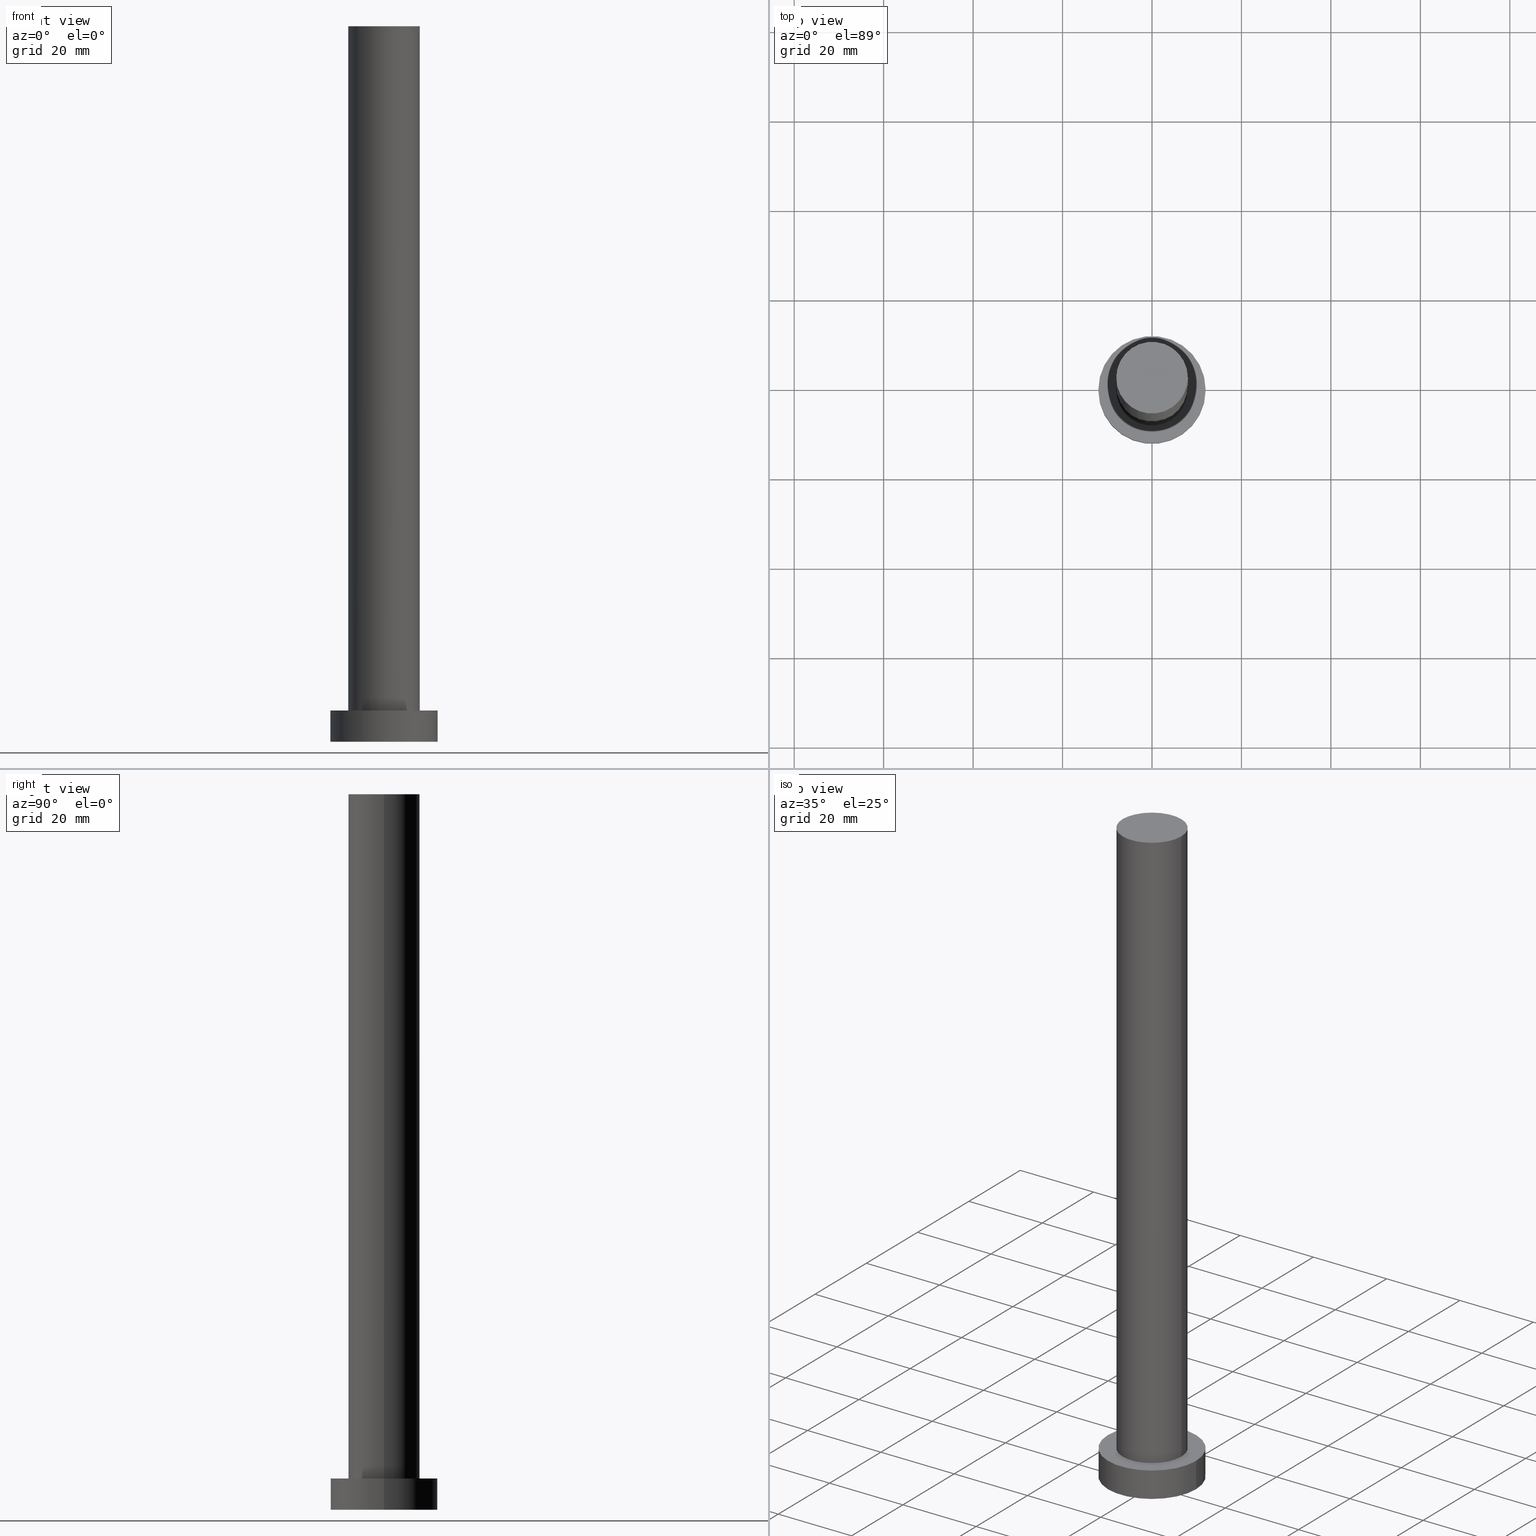
[diagram: canonical four-view strip — front | top / right | iso, engineering-drawing reading convention]
A machine part, canonical four-view strip (front | top / right | iso — engineering-drawing reading convention). The complete STEP part file that produces these views, byte-faithful:
ISO-10303-21;
HEADER;
FILE_DESCRIPTION (( 'STEP AP203' ),
    '1' );
FILE_NAME ('337f.STEP',
    '2023-02-13T09:44:28',
    ( '' ),
    ( '' ),
    'SwSTEP 2.0',
    'SolidWorks 2019',
    '' );
FILE_SCHEMA (( 'CONFIG_CONTROL_DESIGN' ));
ENDSEC;

DATA;
#1 = DIRECTION ( 'NONE',  ( 0.000000000000000000, 0.000000000000000000, 1.000000000000000000 ) ) ;
#2 = CC_DESIGN_PERSON_AND_ORGANIZATION_ASSIGNMENT ( #181, #60, ( #112 ) ) ;
#3 = LOCAL_TIME ( 10, 44, 28.00000000000000000, #5 ) ;
#4 = APPROVAL_STATUS ( 'not_yet_approved' ) ;
#5 = COORDINATED_UNIVERSAL_TIME_OFFSET ( 1, 0, .AHEAD. ) ;
#6 = DATE_AND_TIME ( #163, #107 ) ;
#7 = ORIENTED_EDGE ( 'NONE', *, *, #114, .T. ) ;
#8 = PRODUCT_RELATED_PRODUCT_CATEGORY ( 'detail', '', ( #170 ) ) ;
#9 = ORIENTED_EDGE ( 'NONE', *, *, #37, .T. ) ;
#10 = AXIS2_PLACEMENT_3D ( 'NONE', #32, #116, #178 ) ;
#11 = ORIENTED_EDGE ( 'NONE', *, *, #122, .T. ) ;
#12 = EDGE_CURVE ( 'NONE', #229, #132, #59, .T. ) ;
#13 = EDGE_CURVE ( 'NONE', #111, #31, #62, .T. ) ;
#14 = ORIENTED_EDGE ( 'NONE', *, *, #222, .T. ) ;
#15 = AXIS2_PLACEMENT_3D ( 'NONE', #168, #246, #68 ) ;
#16 = CC_DESIGN_APPROVAL ( #159, ( #200 ) ) ;
#17 = LINE ( 'NONE', #140, #194 ) ;
#18 = DIRECTION ( 'NONE',  ( 1.000000000000000000, 0.000000000000000000, 0.000000000000000000 ) ) ;
#19 = DIRECTION ( 'NONE',  ( -1.000000000000000000, 0.000000000000000000, 0.000000000000000000 ) ) ;
#20 = CARTESIAN_POINT ( 'NONE',  ( 0.000000000000000000, 0.000000000000000000, 7.000000000000000000 ) ) ;
#21 = ADVANCED_FACE ( 'NONE', ( #113, #150 ), #185, .T. ) ;
#22 = FACE_OUTER_BOUND ( 'NONE', #208, .T. ) ;
#23 = DIRECTION ( 'NONE',  ( -1.000000000000000000, 0.000000000000000000, 0.000000000000000000 ) ) ;
#24 = LOCAL_TIME ( 10, 44, 28.00000000000000000, #133 ) ;
#25 = APPLICATION_CONTEXT ( 'configuration controlled 3d designs of mechanical parts and assemblies' ) ;
#26 = CARTESIAN_POINT ( 'NONE',  ( 0.000000000000000000, 0.000000000000000000, 160.0000000000000000 ) ) ;
#27 = EDGE_CURVE ( 'NONE', #183, #31, #48, .T. ) ;
#28 = ORIENTED_EDGE ( 'NONE', *, *, #57, .F. ) ;
#29 = ORIENTED_EDGE ( 'NONE', *, *, #122, .F. ) ;
#30 = DIRECTION ( 'NONE',  ( 1.000000000000000000, 0.000000000000000000, 0.000000000000000000 ) ) ;
#31 = VERTEX_POINT ( 'NONE', #39 ) ;
#32 = CARTESIAN_POINT ( 'NONE',  ( 0.000000000000000000, 0.000000000000000000, 7.000000000000000000 ) ) ;
#33 = VECTOR ( 'NONE', #216, 1000.000000000000000 ) ;
#34 = CARTESIAN_POINT ( 'NONE',  ( 0.000000000000000000, 0.000000000000000000, 160.0000000000000000 ) ) ;
#35 = DIRECTION ( 'NONE',  ( 0.000000000000000000, 0.000000000000000000, 1.000000000000000000 ) ) ;
#36 = DIRECTION ( 'NONE',  ( 0.000000000000000000, 0.000000000000000000, 1.000000000000000000 ) ) ;
#37 = EDGE_CURVE ( 'NONE', #132, #229, #96, .T. ) ;
#38 = APPLICATION_CONTEXT ( 'configuration controlled 3d designs of mechanical parts and assemblies' ) ;
#39 = CARTESIAN_POINT ( 'NONE',  ( -8.000000000000000000, 0.000000000000000000, 7.000000000000000000 ) ) ;
#40 = APPROVAL_ROLE ( '' ) ;
#41 = AXIS2_PLACEMENT_3D ( 'NONE', #139, #215, #97 ) ;
#42 =( LENGTH_UNIT ( ) NAMED_UNIT ( * ) SI_UNIT ( .MILLI., .METRE. ) );
#43 = PERSON_AND_ORGANIZATION ( #204, #239 ) ;
#44 = CC_DESIGN_PERSON_AND_ORGANIZATION_ASSIGNMENT ( #145, #123, ( #112 ) ) ;
#45 = AXIS2_PLACEMENT_3D ( 'NONE', #137, #252, #52 ) ;
#46 = CALENDAR_DATE ( 2023, 13, 2 ) ;
#47 = ORIENTED_EDGE ( 'NONE', *, *, #222, .F. ) ;
#48 = LINE ( 'NONE', #78, #106 ) ;
#49 = ORIENTED_EDGE ( 'NONE', *, *, #12, .F. ) ;
#50 = APPROVAL_PERSON_ORGANIZATION ( #63, #53, #83 ) ;
#51 = VERTEX_POINT ( 'NONE', #77 ) ;
#52 = DIRECTION ( 'NONE',  ( 1.000000000000000000, 0.000000000000000000, 0.000000000000000000 ) ) ;
#53 = APPROVAL ( #221, 'NEUR�EN�' ) ;
#54 = FACE_OUTER_BOUND ( 'NONE', #226, .T. ) ;
#55 = DIRECTION ( 'NONE',  ( 1.000000000000000000, 0.000000000000000000, 0.000000000000000000 ) ) ;
#56 = CARTESIAN_POINT ( 'NONE',  ( 0.000000000000000000, 0.000000000000000000, 0.000000000000000000 ) ) ;
#57 = EDGE_CURVE ( 'NONE', #183, #51, #202, .T. ) ;
#58 = DIRECTION ( 'NONE',  ( 0.000000000000000000, 0.000000000000000000, 1.000000000000000000 ) ) ;
#59 = CIRCLE ( 'NONE', #244, 12.00000000000000178 ) ;
#60 = PERSON_AND_ORGANIZATION_ROLE ( 'design_supplier' ) ;
#61 = CALENDAR_DATE ( 2023, 13, 2 ) ;
#62 = CIRCLE ( 'NONE', #15, 8.000000000000000000 ) ;
#63 = PERSON_AND_ORGANIZATION ( #204, #239 ) ;
#64 = APPROVAL_PERSON_ORGANIZATION ( #43, #159, #80 ) ;
#65 = ADVANCED_BREP_SHAPE_REPRESENTATION ( '337f', ( #161, #172 ), #129 ) ;
#66 = DIRECTION ( 'NONE',  ( 0.000000000000000000, 0.000000000000000000, 1.000000000000000000 ) ) ;
#67 = AXIS2_PLACEMENT_3D ( 'NONE', #74, #36, #155 ) ;
#68 = DIRECTION ( 'NONE',  ( 1.000000000000000000, 0.000000000000000000, 0.000000000000000000 ) ) ;
#69 = EDGE_LOOP ( 'NONE', ( #203, #70, #248, #87 ) ) ;
#70 = ORIENTED_EDGE ( 'NONE', *, *, #187, .T. ) ;
#71 = ADVANCED_FACE ( 'NONE', ( #237 ), #95, .T. ) ;
#72 = DIRECTION ( 'NONE',  ( -0.000000000000000000, -0.000000000000000000, -1.000000000000000000 ) ) ;
#73 = UNCERTAINTY_MEASURE_WITH_UNIT (LENGTH_MEASURE( 1.000000000000000082E-05 ), #42, 'distance_accuracy_value', 'NONE');
#74 = CARTESIAN_POINT ( 'NONE',  ( 0.000000000000000000, 0.000000000000000000, 0.000000000000000000 ) ) ;
#75 = SECURITY_CLASSIFICATION ( '', '', #243 ) ;
#76 = DIRECTION ( 'NONE',  ( -0.000000000000000000, -0.000000000000000000, -1.000000000000000000 ) ) ;
#77 = CARTESIAN_POINT ( 'NONE',  ( 8.000000000000000000, 9.797174393178825657E-16, 160.0000000000000000 ) ) ;
#78 = CARTESIAN_POINT ( 'NONE',  ( -8.000000000000000000, 0.000000000000000000, 160.0000000000000000 ) ) ;
#79 = CIRCLE ( 'NONE', #41, 12.00000000000000178 ) ;
#80 = APPROVAL_ROLE ( '' ) ;
#81 = COORDINATED_UNIVERSAL_TIME_OFFSET ( 1, 0, .AHEAD. ) ;
#82 =( NAMED_UNIT ( * ) PLANE_ANGLE_UNIT ( ) SI_UNIT ( $, .RADIAN. ) );
#83 = APPROVAL_ROLE ( '' ) ;
#84 = EDGE_CURVE ( 'NONE', #31, #111, #162, .T. ) ;
#85 = LOCAL_TIME ( 10, 44, 28.00000000000000000, #241 ) ;
#86 = DIRECTION ( 'NONE',  ( 0.000000000000000000, 0.000000000000000000, 1.000000000000000000 ) ) ;
#87 = ORIENTED_EDGE ( 'NONE', *, *, #27, .F. ) ;
#88 = AXIS2_PLACEMENT_3D ( 'NONE', #20, #119, #19 ) ;
#89 = ORIENTED_EDGE ( 'NONE', *, *, #13, .F. ) ;
#90 = APPROVAL ( #4, 'NEUR�EN�' ) ;
#91 = ORIENTED_EDGE ( 'NONE', *, *, #187, .F. ) ;
#92 = AXIS2_PLACEMENT_3D ( 'NONE', #34, #1, #160 ) ;
#93 = CARTESIAN_POINT ( 'NONE',  ( 12.00000000000000178, 1.469576158976824144E-15, 7.000000000000000000 ) ) ;
#94 = PLANE ( 'NONE',  #67 ) ;
#95 = CYLINDRICAL_SURFACE ( 'NONE', #88, 12.00000000000000178 ) ;
#96 = CIRCLE ( 'NONE', #141, 12.00000000000000178 ) ;
#97 = DIRECTION ( 'NONE',  ( 1.000000000000000000, 0.000000000000000000, 0.000000000000000000 ) ) ;
#98 = DIRECTION ( 'NONE',  ( 0.000000000000000000, 0.000000000000000000, 1.000000000000000000 ) ) ;
#99 = ADVANCED_FACE ( 'NONE', ( #22 ), #193, .T. ) ;
#100 = PERSON_AND_ORGANIZATION_ROLE ( 'classification_officer' ) ;
#101 = CC_DESIGN_DATE_AND_TIME_ASSIGNMENT ( #144, #219, ( #75 ) ) ;
#102 = CIRCLE ( 'NONE', #233, 8.000000000000000000 ) ;
#103 = LOCAL_TIME ( 10, 44, 28.00000000000000000, #164 ) ;
#104 = APPLICATION_PROTOCOL_DEFINITION ( 'international standard', 'config_control_design', 1994, #38 ) ;
#105 = APPLICATION_PROTOCOL_DEFINITION ( 'international standard', 'config_control_design', 1994, #25 ) ;
#106 = VECTOR ( 'NONE', #120, 1000.000000000000000 ) ;
#107 = LOCAL_TIME ( 10, 44, 28.00000000000000000, #81 ) ;
#108 =( NAMED_UNIT ( * ) SI_UNIT ( $, .STERADIAN. ) SOLID_ANGLE_UNIT ( ) );
#109 = ORIENTED_EDGE ( 'NONE', *, *, #114, .F. ) ;
#110 = EDGE_LOOP ( 'NONE', ( #206, #89 ) ) ;
#111 = VERTEX_POINT ( 'NONE', #174 ) ;
#112 = PRODUCT_DEFINITION_FORMATION_WITH_SPECIFIED_SOURCE ( 'LIBOVOLN�', '', #170, .NOT_KNOWN. ) ;
#113 = FACE_BOUND ( 'NONE', #110, .T. ) ;
#114 = EDGE_CURVE ( 'NONE', #225, #153, #79, .T. ) ;
#115 = EDGE_LOOP ( 'NONE', ( #11, #7 ) ) ;
#116 = DIRECTION ( 'NONE',  ( -0.000000000000000000, -0.000000000000000000, -1.000000000000000000 ) ) ;
#117 = AXIS2_PLACEMENT_3D ( 'NONE', #254, #98, #55 ) ;
#118 = CARTESIAN_POINT ( 'NONE',  ( 0.000000000000000000, 0.000000000000000000, 160.0000000000000000 ) ) ;
#119 = DIRECTION ( 'NONE',  ( -0.000000000000000000, -0.000000000000000000, -1.000000000000000000 ) ) ;
#120 = DIRECTION ( 'NONE',  ( -0.000000000000000000, -0.000000000000000000, -1.000000000000000000 ) ) ;
#121 = DIRECTION ( 'NONE',  ( 0.000000000000000000, 0.000000000000000000, 1.000000000000000000 ) ) ;
#122 = EDGE_CURVE ( 'NONE', #153, #225, #224, .T. ) ;
#123 = PERSON_AND_ORGANIZATION_ROLE ( 'creator' ) ;
#124 = CARTESIAN_POINT ( 'NONE',  ( 0.000000000000000000, 0.000000000000000000, 0.000000000000000000 ) ) ;
#125 = APPROVAL_PERSON_ORGANIZATION ( #240, #90, #40 ) ;
#126 = DATE_AND_TIME ( #143, #103 ) ;
#127 = PERSON_AND_ORGANIZATION_ROLE ( 'design_owner' ) ;
#128 = APPROVAL_DATE_TIME ( #199, #90 ) ;
#129 =( GEOMETRIC_REPRESENTATION_CONTEXT ( 3 ) GLOBAL_UNCERTAINTY_ASSIGNED_CONTEXT ( ( #73 ) ) GLOBAL_UNIT_ASSIGNED_CONTEXT ( ( #42, #82, #108 ) ) REPRESENTATION_CONTEXT ( 'NONE', 'WORKASPACE' ) );
#130 = DATE_AND_TIME ( #46, #24 ) ;
#131 = ORIENTED_EDGE ( 'NONE', *, *, #37, .F. ) ;
#132 = VERTEX_POINT ( 'NONE', #253 ) ;
#133 = COORDINATED_UNIVERSAL_TIME_OFFSET ( 1, 0, .AHEAD. ) ;
#134 = ORIENTED_EDGE ( 'NONE', *, *, #12, .T. ) ;
#135 = ORIENTED_EDGE ( 'NONE', *, *, #211, .T. ) ;
#136 = CARTESIAN_POINT ( 'NONE',  ( 0.000000000000000000, 0.000000000000000000, 160.0000000000000000 ) ) ;
#137 = CARTESIAN_POINT ( 'NONE',  ( 0.000000000000000000, 0.000000000000000000, 7.000000000000000000 ) ) ;
#138 = CYLINDRICAL_SURFACE ( 'NONE', #184, 8.000000000000000000 ) ;
#139 = CARTESIAN_POINT ( 'NONE',  ( 0.000000000000000000, 0.000000000000000000, 7.000000000000000000 ) ) ;
#140 = CARTESIAN_POINT ( 'NONE',  ( -12.00000000000000178, 0.000000000000000000, 7.000000000000000000 ) ) ;
#141 = AXIS2_PLACEMENT_3D ( 'NONE', #56, #35, #255 ) ;
#142 = CC_DESIGN_DATE_AND_TIME_ASSIGNMENT ( #126, #180, ( #200 ) ) ;
#143 = CALENDAR_DATE ( 2023, 13, 2 ) ;
#144 = DATE_AND_TIME ( #179, #3 ) ;
#145 = PERSON_AND_ORGANIZATION ( #204, #239 ) ;
#146 = PERSON_AND_ORGANIZATION_ROLE ( 'creator' ) ;
#147 = CC_DESIGN_PERSON_AND_ORGANIZATION_ASSIGNMENT ( #220, #100, ( #75 ) ) ;
#148 = DIRECTION ( 'NONE',  ( 1.000000000000000000, 0.000000000000000000, -0.000000000000000000 ) ) ;
#149 = PRODUCT_DEFINITION_SHAPE ( 'NONE', 'NONE',  #200 ) ;
#150 = FACE_OUTER_BOUND ( 'NONE', #115, .T. ) ;
#151 = EDGE_LOOP ( 'NONE', ( #91, #28, #173, #169 ) ) ;
#152 = ORIENTED_EDGE ( 'NONE', *, *, #211, .F. ) ;
#153 = VERTEX_POINT ( 'NONE', #177 ) ;
#154 = DIRECTION ( 'NONE',  ( -1.000000000000000000, 0.000000000000000000, 0.000000000000000000 ) ) ;
#155 = DIRECTION ( 'NONE',  ( 1.000000000000000000, 0.000000000000000000, -0.000000000000000000 ) ) ;
#156 = VECTOR ( 'NONE', #76, 1000.000000000000000 ) ;
#157 = FACE_OUTER_BOUND ( 'NONE', #69, .T. ) ;
#158 = CARTESIAN_POINT ( 'NONE',  ( -8.000000000000000000, 0.000000000000000000, 160.0000000000000000 ) ) ;
#159 = APPROVAL ( #165, 'NEUR�EN�' ) ;
#160 = DIRECTION ( 'NONE',  ( 1.000000000000000000, 0.000000000000000000, 0.000000000000000000 ) ) ;
#161 = MANIFOLD_SOLID_BREP ( 'P�idat vysunut�m3', #171 ) ;
#162 = CIRCLE ( 'NONE', #45, 8.000000000000000000 ) ;
#163 = CALENDAR_DATE ( 2023, 13, 2 ) ;
#164 = COORDINATED_UNIVERSAL_TIME_OFFSET ( 1, 0, .AHEAD. ) ;
#165 = APPROVAL_STATUS ( 'not_yet_approved' ) ;
#166 = AXIS2_PLACEMENT_3D ( 'NONE', #118, #72, #154 ) ;
#167 = DIRECTION ( 'NONE',  ( -0.000000000000000000, -0.000000000000000000, -1.000000000000000000 ) ) ;
#168 = CARTESIAN_POINT ( 'NONE',  ( 0.000000000000000000, 0.000000000000000000, 7.000000000000000000 ) ) ;
#169 = ORIENTED_EDGE ( 'NONE', *, *, #84, .T. ) ;
#170 = PRODUCT ( '337f', '337f', '', ( #198 ) ) ;
#171 = CLOSED_SHELL ( 'NONE', ( #223, #71, #182, #21, #230, #242, #99 ) ) ;
#172 = AXIS2_PLACEMENT_3D ( 'NONE', #124, #86, #218 ) ;
#173 = ORIENTED_EDGE ( 'NONE', *, *, #27, .T. ) ;
#174 = CARTESIAN_POINT ( 'NONE',  ( 8.000000000000000000, 9.797174393178825657E-16, 7.000000000000000000 ) ) ;
#175 = LINE ( 'NONE', #93, #156 ) ;
#176 = CARTESIAN_POINT ( 'NONE',  ( 0.000000000000000000, 0.000000000000000000, 160.0000000000000000 ) ) ;
#177 = CARTESIAN_POINT ( 'NONE',  ( -12.00000000000000178, 0.000000000000000000, 7.000000000000000000 ) ) ;
#178 = DIRECTION ( 'NONE',  ( -1.000000000000000000, 0.000000000000000000, 0.000000000000000000 ) ) ;
#179 = CALENDAR_DATE ( 2023, 13, 2 ) ;
#180 = DATE_TIME_ROLE ( 'creation_date' ) ;
#181 = PERSON_AND_ORGANIZATION ( #204, #239 ) ;
#182 = ADVANCED_FACE ( 'NONE', ( #190 ), #212, .T. ) ;
#183 = VERTEX_POINT ( 'NONE', #158 ) ;
#184 = AXIS2_PLACEMENT_3D ( 'NONE', #26, #167, #23 ) ;
#185 = PLANE ( 'NONE',  #207 ) ;
#186 = CARTESIAN_POINT ( 'NONE',  ( 0.000000000000000000, 0.000000000000000000, 7.000000000000000000 ) ) ;
#187 = EDGE_CURVE ( 'NONE', #51, #111, #217, .T. ) ;
#188 = CC_DESIGN_PERSON_AND_ORGANIZATION_ASSIGNMENT ( #245, #146, ( #200 ) ) ;
#189 = DIRECTION ( 'NONE',  ( 1.000000000000000000, 0.000000000000000000, -0.000000000000000000 ) ) ;
#190 = FACE_OUTER_BOUND ( 'NONE', #251, .T. ) ;
#191 = CARTESIAN_POINT ( 'NONE',  ( 8.000000000000000000, 9.797174393178825657E-16, 160.0000000000000000 ) ) ;
#192 = EDGE_CURVE ( 'NONE', #51, #183, #102, .T. ) ;
#193 = PLANE ( 'NONE',  #196 ) ;
#194 = VECTOR ( 'NONE', #195, 1000.000000000000000 ) ;
#195 = DIRECTION ( 'NONE',  ( -0.000000000000000000, -0.000000000000000000, -1.000000000000000000 ) ) ;
#196 = AXIS2_PLACEMENT_3D ( 'NONE', #136, #121, #189 ) ;
#197 = CC_DESIGN_APPROVAL ( #53, ( #75 ) ) ;
#198 = MECHANICAL_CONTEXT ( 'NONE', #25, 'mechanical' ) ;
#199 = DATE_AND_TIME ( #61, #85 ) ;
#200 = PRODUCT_DEFINITION ( 'NEZN�M�', '', #112, #213 ) ;
#201 = PERSON_AND_ORGANIZATION ( #204, #239 ) ;
#202 = CIRCLE ( 'NONE', #92, 8.000000000000000000 ) ;
#203 = ORIENTED_EDGE ( 'NONE', *, *, #192, .F. ) ;
#204 = PERSON ( 'NEUR�EN�', 'NEUR�EN�', 'NEUR�EN�', ('NEUR�EN�'), ('NEUR�EN�'), ('NEUR�EN�') ) ;
#205 = ORIENTED_EDGE ( 'NONE', *, *, #192, .T. ) ;
#206 = ORIENTED_EDGE ( 'NONE', *, *, #84, .F. ) ;
#207 = AXIS2_PLACEMENT_3D ( 'NONE', #186, #66, #148 ) ;
#208 = EDGE_LOOP ( 'NONE', ( #231, #205 ) ) ;
#209 = APPROVAL_DATE_TIME ( #130, #53 ) ;
#210 = DIRECTION ( 'NONE',  ( 0.000000000000000000, 0.000000000000000000, 1.000000000000000000 ) ) ;
#211 = EDGE_CURVE ( 'NONE', #153, #229, #17, .T. ) ;
#212 = CYLINDRICAL_SURFACE ( 'NONE', #10, 12.00000000000000178 ) ;
#213 = DESIGN_CONTEXT ( 'detailed design', #38, 'design' ) ;
#214 = CARTESIAN_POINT ( 'NONE',  ( -12.00000000000000178, 0.000000000000000000, 0.000000000000000000 ) ) ;
#215 = DIRECTION ( 'NONE',  ( 0.000000000000000000, 0.000000000000000000, 1.000000000000000000 ) ) ;
#216 = DIRECTION ( 'NONE',  ( -0.000000000000000000, -0.000000000000000000, -1.000000000000000000 ) ) ;
#217 = LINE ( 'NONE', #191, #33 ) ;
#218 = DIRECTION ( 'NONE',  ( 1.000000000000000000, 0.000000000000000000, 0.000000000000000000 ) ) ;
#219 = DATE_TIME_ROLE ( 'classification_date' ) ;
#220 = PERSON_AND_ORGANIZATION ( #204, #239 ) ;
#221 = APPROVAL_STATUS ( 'not_yet_approved' ) ;
#222 = EDGE_CURVE ( 'NONE', #225, #132, #175, .T. ) ;
#223 = ADVANCED_FACE ( 'NONE', ( #157 ), #236, .T. ) ;
#224 = CIRCLE ( 'NONE', #117, 12.00000000000000178 ) ;
#225 = VERTEX_POINT ( 'NONE', #232 ) ;
#226 = EDGE_LOOP ( 'NONE', ( #49, #131 ) ) ;
#227 = CARTESIAN_POINT ( 'NONE',  ( 0.000000000000000000, 0.000000000000000000, 0.000000000000000000 ) ) ;
#228 = SHAPE_DEFINITION_REPRESENTATION ( #149, #65 ) ;
#229 = VERTEX_POINT ( 'NONE', #214 ) ;
#230 = ADVANCED_FACE ( 'NONE', ( #54 ), #94, .F. ) ;
#231 = ORIENTED_EDGE ( 'NONE', *, *, #57, .T. ) ;
#232 = CARTESIAN_POINT ( 'NONE',  ( 12.00000000000000178, 1.469576158976824144E-15, 7.000000000000000000 ) ) ;
#233 = AXIS2_PLACEMENT_3D ( 'NONE', #176, #58, #18 ) ;
#234 = CC_DESIGN_SECURITY_CLASSIFICATION ( #75, ( #112 ) ) ;
#235 = FACE_OUTER_BOUND ( 'NONE', #151, .T. ) ;
#236 = CYLINDRICAL_SURFACE ( 'NONE', #166, 8.000000000000000000 ) ;
#237 = FACE_OUTER_BOUND ( 'NONE', #250, .T. ) ;
#238 = APPROVAL_DATE_TIME ( #6, #159 ) ;
#239 = ORGANIZATION ( 'NEUR�EN�', 'NEUR�EN�', '' ) ;
#240 = PERSON_AND_ORGANIZATION ( #204, #239 ) ;
#241 = COORDINATED_UNIVERSAL_TIME_OFFSET ( 1, 0, .AHEAD. ) ;
#242 = ADVANCED_FACE ( 'NONE', ( #235 ), #138, .T. ) ;
#243 = SECURITY_CLASSIFICATION_LEVEL ( 'unclassified' ) ;
#244 = AXIS2_PLACEMENT_3D ( 'NONE', #227, #210, #30 ) ;
#245 = PERSON_AND_ORGANIZATION ( #204, #239 ) ;
#246 = DIRECTION ( 'NONE',  ( 0.000000000000000000, 0.000000000000000000, 1.000000000000000000 ) ) ;
#247 = CC_DESIGN_APPROVAL ( #90, ( #112 ) ) ;
#248 = ORIENTED_EDGE ( 'NONE', *, *, #13, .T. ) ;
#249 = CC_DESIGN_PERSON_AND_ORGANIZATION_ASSIGNMENT ( #201, #127, ( #170 ) ) ;
#250 = EDGE_LOOP ( 'NONE', ( #109, #14, #9, #152 ) ) ;
#251 = EDGE_LOOP ( 'NONE', ( #47, #29, #135, #134 ) ) ;
#252 = DIRECTION ( 'NONE',  ( 0.000000000000000000, 0.000000000000000000, 1.000000000000000000 ) ) ;
#253 = CARTESIAN_POINT ( 'NONE',  ( 12.00000000000000178, 1.469576158976824144E-15, 0.000000000000000000 ) ) ;
#254 = CARTESIAN_POINT ( 'NONE',  ( 0.000000000000000000, 0.000000000000000000, 7.000000000000000000 ) ) ;
#255 = DIRECTION ( 'NONE',  ( 1.000000000000000000, 0.000000000000000000, 0.000000000000000000 ) ) ;
ENDSEC;
END-ISO-10303-21;
